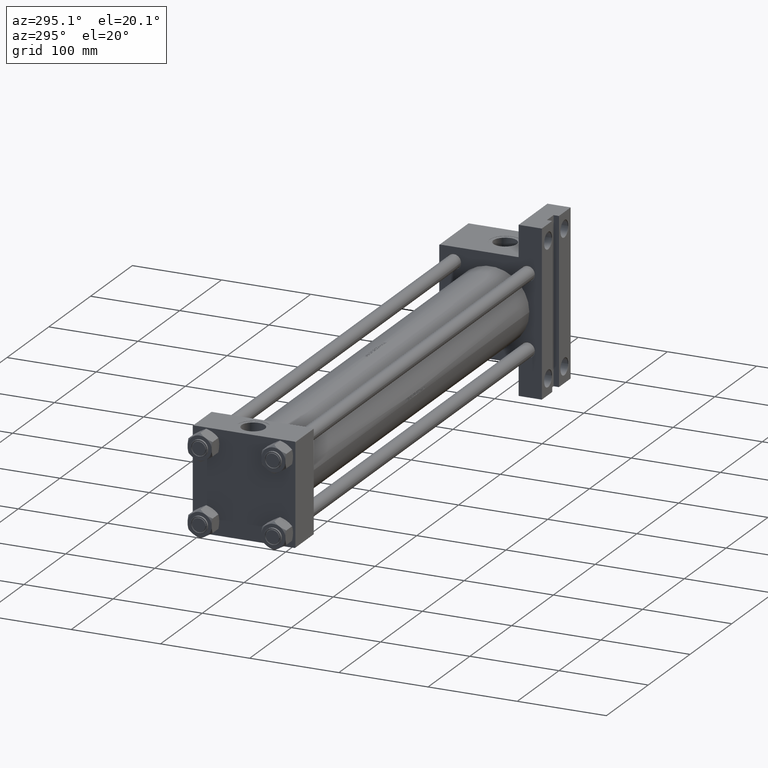
[diagram: clean part render]
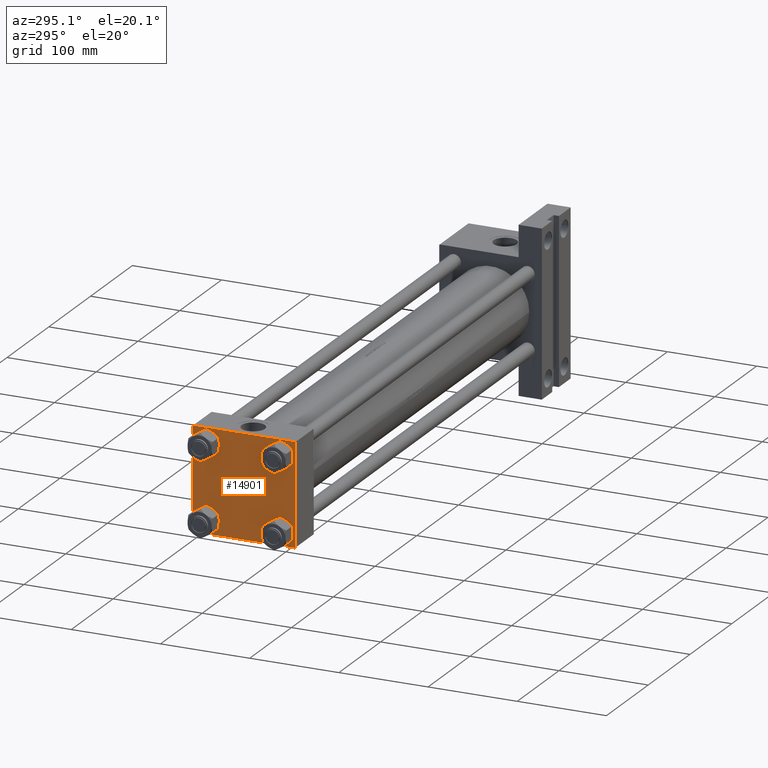
[diagram: same view with one face highlighted and labeled with its STEP entity id]
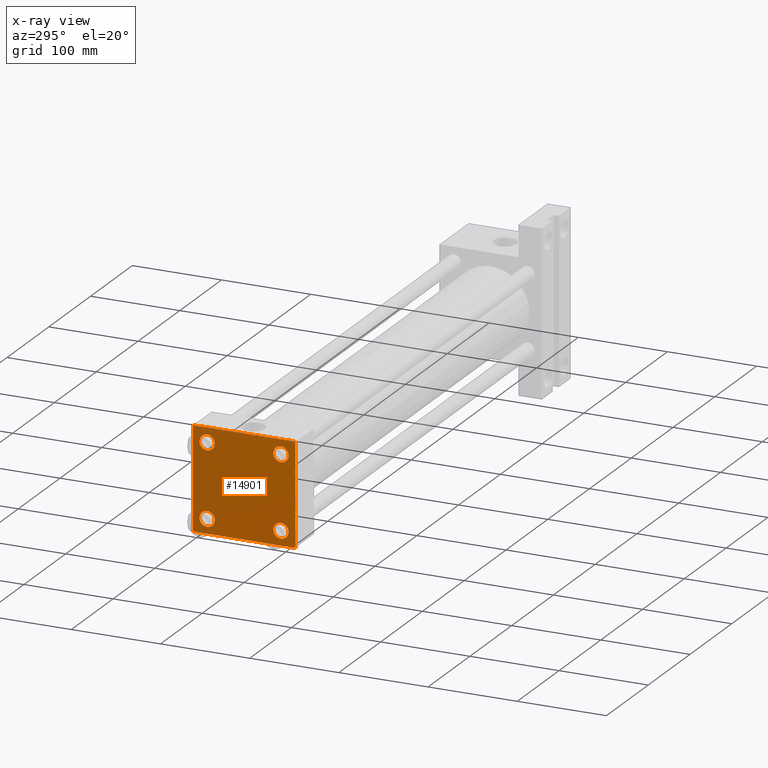
[diagram: x-ray of the same camera — body ghosted, the highlighted face saturated]
A machine part, auxiliary view. The second image highlights one B-rep face of the part: STEP entity #14901.
The next image is the same camera in x-ray: the body ghosted, the highlighted face saturated — about 0% of this face is hidden behind the body in this view.
In plain terms, the highlighted planar face has unit normal (-1, 0, -0).
Its self-contained STEP definition (entity closure, byte-faithful):
#192 = CARTESIAN_POINT ( 'NONE',  ( 0.000000000000000000, 57.25000000000081712, -57.24999999999922551 ) ) ;
#1001 = CARTESIAN_POINT ( 'NONE',  ( 0.000000000000000000, 57.49999999999999289, 57.50000000000000711 ) ) ;
#1729 = FACE_BOUND ( 'NONE', #36163, .T. ) ;
#1957 = VERTEX_POINT ( 'NONE', #33063 ) ;
#2216 = CARTESIAN_POINT ( 'NONE',  ( 0.000000000000000000, -41.34999999999998721, -41.35000000000000853 ) ) ;
#2226 = AXIS2_PLACEMENT_3D ( 'NONE', #5019, #23993, #19858 ) ;
#2231 = ORIENTED_EDGE ( 'NONE', *, *, #28511, .T. ) ;
#2429 = VERTEX_POINT ( 'NONE', #22134 ) ;
#2683 = VECTOR ( 'NONE', #16448, 1000.000000000000114 ) ;
#2699 = DIRECTION ( 'NONE',  ( 1.000000000000000000, -0.000000000000000000, 0.000000000000000000 ) ) ;
#3074 = VERTEX_POINT ( 'NONE', #14497 ) ;
#3174 = DIRECTION ( 'NONE',  ( 1.000000000000000000, -0.000000000000000000, 0.000000000000000000 ) ) ;
#4229 = EDGE_CURVE ( 'NONE', #39049, #17564, #8887, .T. ) ;
#4516 = DIRECTION ( 'NONE',  ( 1.000000000000000000, -0.000000000000000000, 0.000000000000000000 ) ) ;
#4549 = AXIS2_PLACEMENT_3D ( 'NONE', #46978, #6368, #43563 ) ;
#5019 = CARTESIAN_POINT ( 'NONE',  ( 0.000000000000000000, 41.34999999999999432, -41.35000000000000142 ) ) ;
#5398 = EDGE_CURVE ( 'NONE', #34273, #1957, #5732, .T. ) ;
#5571 = DIRECTION ( 'NONE',  ( 0.000000000000000000, 0.000000000000000000, 1.000000000000000000 ) ) ;
#5623 = PLANE ( 'NONE',  #42946 ) ;
#5732 = LINE ( 'NONE', #23764, #2683 ) ;
#5988 = CARTESIAN_POINT ( 'NONE',  ( 0.000000000000000000, -57.00000000000000711, -57.50000000000000711 ) ) ;
#6368 = DIRECTION ( 'NONE',  ( 1.000000000000000000, -0.000000000000000000, 0.000000000000000000 ) ) ;
#7012 = CIRCLE ( 'NONE', #17112, 8.499999999999992895 ) ;
#8475 = VECTOR ( 'NONE', #47614, 1000.000000000000000 ) ;
#8887 = CIRCLE ( 'NONE', #41506, 8.499999999999992895 ) ;
#9156 = CARTESIAN_POINT ( 'NONE',  ( 0.000000000000000000, -57.50000000000000711, 57.00000000000000711 ) ) ;
#9380 = VERTEX_POINT ( 'NONE', #44993 ) ;
#9459 = ORIENTED_EDGE ( 'NONE', *, *, #18329, .T. ) ;
#9899 = CARTESIAN_POINT ( 'NONE',  ( 0.000000000000000000, -41.34999999999998721, -32.85000000000001563 ) ) ;
#10696 = CARTESIAN_POINT ( 'NONE',  ( -0.000000000000000000, -57.25000000000081712, 57.24999999999922551 ) ) ;
#11410 = LINE ( 'NONE', #192, #18811 ) ;
#11496 = VERTEX_POINT ( 'NONE', #9899 ) ;
#11553 = CARTESIAN_POINT ( 'NONE',  ( 0.000000000000000000, 57.49999999999999289, -57.49999999999999289 ) ) ;
#11829 = DIRECTION ( 'NONE',  ( 0.000000000000000000, 0.000000000000000000, 1.000000000000000000 ) ) ;
#12169 = EDGE_LOOP ( 'NONE', ( #24259, #12985 ) ) ;
#12275 = VECTOR ( 'NONE', #28748, 1000.000000000000114 ) ;
#12935 = FACE_BOUND ( 'NONE', #25597, .T. ) ;
#12985 = ORIENTED_EDGE ( 'NONE', *, *, #27617, .T. ) ;
#13356 = CARTESIAN_POINT ( 'NONE',  ( 0.000000000000000000, -41.34999999999998721, -49.85000000000000853 ) ) ;
#13927 = VERTEX_POINT ( 'NONE', #18467 ) ;
#14140 = DIRECTION ( 'NONE',  ( 0.000000000000000000, 0.000000000000000000, 1.000000000000000000 ) ) ;
#14497 = CARTESIAN_POINT ( 'NONE',  ( 0.000000000000000000, -41.34999999999998721, 49.85000000000000853 ) ) ;
#14901 = ADVANCED_FACE ( 'NONE', ( #1729, #20460, #32763, #12935, #47612 ), #5623, .T. ) ;
#14914 = AXIS2_PLACEMENT_3D ( 'NONE', #16521, #46186, #5571 ) ;
#14937 = VERTEX_POINT ( 'NONE', #36657 ) ;
#15863 = DIRECTION ( 'NONE',  ( 0.000000000000000000, -1.000000000000000000, -1.206764157201257045E-16 ) ) ;
#15913 = AXIS2_PLACEMENT_3D ( 'NONE', #16475, #42490, #16954 ) ;
#16448 = DIRECTION ( 'NONE',  ( 0.000000000000000000, 0.7071067811865573427, -0.7071067811865376918 ) ) ;
#16468 = CIRCLE ( 'NONE', #39749, 8.499999999999992895 ) ;
#16475 = CARTESIAN_POINT ( 'NONE',  ( 0.000000000000000000, 41.34999999999999432, 41.35000000000000142 ) ) ;
#16521 = CARTESIAN_POINT ( 'NONE',  ( 0.000000000000000000, -41.34999999999998721, 41.35000000000000853 ) ) ;
#16954 = DIRECTION ( 'NONE',  ( 0.000000000000000000, 0.000000000000000000, 1.000000000000000000 ) ) ;
#17112 = AXIS2_PLACEMENT_3D ( 'NONE', #2216, #3174, #14140 ) ;
#17564 = VERTEX_POINT ( 'NONE', #20958 ) ;
#18329 = EDGE_CURVE ( 'NONE', #29452, #2429, #27553, .T. ) ;
#18386 = VERTEX_POINT ( 'NONE', #28614 ) ;
#18467 = CARTESIAN_POINT ( 'NONE',  ( 0.000000000000000000, 57.49999999999999289, -57.00000000000000711 ) ) ;
#18557 = DIRECTION ( 'NONE',  ( 0.000000000000000000, 0.000000000000000000, 1.000000000000000000 ) ) ;
#18811 = VECTOR ( 'NONE', #26243, 1000.000000000000114 ) ;
#18815 = CIRCLE ( 'NONE', #25054, 8.499999999999992895 ) ;
#19837 = CARTESIAN_POINT ( 'NONE',  ( 0.000000000000000000, 41.34999999999999432, 41.35000000000000142 ) ) ;
#19858 = DIRECTION ( 'NONE',  ( 0.000000000000000000, 0.000000000000000000, 1.000000000000000000 ) ) ;
#20460 = FACE_BOUND ( 'NONE', #12169, .T. ) ;
#20740 = LINE ( 'NONE', #46984, #12275 ) ;
#20958 = CARTESIAN_POINT ( 'NONE',  ( 0.000000000000000000, 41.34999999999999432, -32.85000000000000853 ) ) ;
#21405 = EDGE_LOOP ( 'NONE', ( #32915, #25650, #27874, #2231, #21776, #32732, #43624, #26019 ) ) ;
#21596 = VECTOR ( 'NONE', #21876, 1000.000000000000000 ) ;
#21776 = ORIENTED_EDGE ( 'NONE', *, *, #26962, .F. ) ;
#21835 = DIRECTION ( 'NONE',  ( -0.000000000000000000, 0.000000000000000000, 1.000000000000000000 ) ) ;
#21876 = DIRECTION ( 'NONE',  ( 0.000000000000000000, 0.000000000000000000, -1.000000000000000000 ) ) ;
#22134 = CARTESIAN_POINT ( 'NONE',  ( 0.000000000000000000, 41.34999999999999432, 32.85000000000000853 ) ) ;
#23764 = CARTESIAN_POINT ( 'NONE',  ( 0.000000000000000000, 57.24999999999922551, 57.25000000000081712 ) ) ;
#23993 = DIRECTION ( 'NONE',  ( 1.000000000000000000, -0.000000000000000000, 0.000000000000000000 ) ) ;
#24259 = ORIENTED_EDGE ( 'NONE', *, *, #36621, .T. ) ;
#25054 = AXIS2_PLACEMENT_3D ( 'NONE', #19837, #4516, #11829 ) ;
#25597 = EDGE_LOOP ( 'NONE', ( #9459, #44111 ) ) ;
#25650 = ORIENTED_EDGE ( 'NONE', *, *, #47876, .T. ) ;
#26019 = ORIENTED_EDGE ( 'NONE', *, *, #5398, .T. ) ;
#26243 = DIRECTION ( 'NONE',  ( -0.000000000000000000, -0.7071067811865376918, -0.7071067811865573427 ) ) ;
#26962 = EDGE_CURVE ( 'NONE', #44725, #9380, #44476, .T. ) ;
#27056 = LINE ( 'NONE', #1001, #42042 ) ;
#27341 = CIRCLE ( 'NONE', #14914, 8.499999999999992895 ) ;
#27553 = CIRCLE ( 'NONE', #15913, 8.499999999999992895 ) ;
#27617 = EDGE_CURVE ( 'NONE', #35965, #11496, #30859, .T. ) ;
#27868 = ORIENTED_EDGE ( 'NONE', *, *, #46232, .T. ) ;
#27874 = ORIENTED_EDGE ( 'NONE', *, *, #33750, .T. ) ;
#28511 = EDGE_CURVE ( 'NONE', #34860, #9380, #20740, .T. ) ;
#28614 = CARTESIAN_POINT ( 'NONE',  ( 0.000000000000000000, 57.00000000000002132, -57.49999999999999289 ) ) ;
#28748 = DIRECTION ( 'NONE',  ( 0.000000000000000000, -0.7071067811865474617, 0.7071067811865474617 ) ) ;
#29452 = VERTEX_POINT ( 'NONE', #38799 ) ;
#29607 = LINE ( 'NONE', #32765, #8475 ) ;
#30605 = ORIENTED_EDGE ( 'NONE', *, *, #46400, .T. ) ;
#30859 = CIRCLE ( 'NONE', #4549, 8.499999999999992895 ) ;
#31107 = VECTOR ( 'NONE', #33522, 1000.000000000000114 ) ;
#31568 = CARTESIAN_POINT ( 'NONE',  ( 0.000000000000000000, 57.00000000000000711, 57.50000000000000711 ) ) ;
#31876 = DIRECTION ( 'NONE',  ( 0.000000000000000000, 0.000000000000000000, 1.000000000000000000 ) ) ;
#32243 = EDGE_CURVE ( 'NONE', #1957, #13927, #29607, .T. ) ;
#32732 = ORIENTED_EDGE ( 'NONE', *, *, #43041, .T. ) ;
#32763 = FACE_BOUND ( 'NONE', #47110, .T. ) ;
#32765 = CARTESIAN_POINT ( 'NONE',  ( 0.000000000000000000, 57.49999999999999289, 57.50000000000000711 ) ) ;
#32906 = CARTESIAN_POINT ( 'NONE',  ( 0.000000000000000000, 41.34999999999999432, -41.35000000000000142 ) ) ;
#32915 = ORIENTED_EDGE ( 'NONE', *, *, #32243, .T. ) ;
#33047 = LINE ( 'NONE', #10696, #31107 ) ;
#33063 = CARTESIAN_POINT ( 'NONE',  ( 0.000000000000000000, 57.49999999999999289, 57.00000000000003553 ) ) ;
#33522 = DIRECTION ( 'NONE',  ( -0.000000000000000000, 0.7071067811865376918, 0.7071067811865573427 ) ) ;
#33750 = EDGE_CURVE ( 'NONE', #18386, #34860, #41690, .T. ) ;
#34273 = VERTEX_POINT ( 'NONE', #31568 ) ;
#34387 = DIRECTION ( 'NONE',  ( 0.000000000000000000, -1.000000000000000000, -1.206764157201257045E-16 ) ) ;
#34687 = CARTESIAN_POINT ( 'NONE',  ( 0.000000000000000000, 41.34999999999999432, -49.85000000000000142 ) ) ;
#34860 = VERTEX_POINT ( 'NONE', #5988 ) ;
#35965 = VERTEX_POINT ( 'NONE', #13356 ) ;
#36163 = EDGE_LOOP ( 'NONE', ( #27868, #30605 ) ) ;
#36621 = EDGE_CURVE ( 'NONE', #11496, #35965, #7012, .T. ) ;
#36657 = CARTESIAN_POINT ( 'NONE',  ( 0.000000000000000000, -41.34999999999998721, 32.85000000000001563 ) ) ;
#37005 = VERTEX_POINT ( 'NONE', #46426 ) ;
#38015 = VECTOR ( 'NONE', #34387, 1000.000000000000000 ) ;
#38474 = EDGE_CURVE ( 'NONE', #2429, #29452, #18815, .T. ) ;
#38799 = CARTESIAN_POINT ( 'NONE',  ( 0.000000000000000000, 41.34999999999999432, 49.85000000000000142 ) ) ;
#39049 = VERTEX_POINT ( 'NONE', #34687 ) ;
#39075 = EDGE_CURVE ( 'NONE', #17564, #39049, #48064, .T. ) ;
#39657 = CARTESIAN_POINT ( 'NONE',  ( 0.000000000000000000, -41.34999999999998721, 41.35000000000000853 ) ) ;
#39749 = AXIS2_PLACEMENT_3D ( 'NONE', #39657, #2699, #31876 ) ;
#40349 = CARTESIAN_POINT ( 'NONE',  ( 0.000000000000000000, -57.50000000000000711, 57.49999999999999289 ) ) ;
#40470 = ORIENTED_EDGE ( 'NONE', *, *, #4229, .T. ) ;
#41384 = ORIENTED_EDGE ( 'NONE', *, *, #39075, .T. ) ;
#41506 = AXIS2_PLACEMENT_3D ( 'NONE', #32906, #47271, #18557 ) ;
#41690 = LINE ( 'NONE', #11553, #38015 ) ;
#42042 = VECTOR ( 'NONE', #15863, 1000.000000000000000 ) ;
#42490 = DIRECTION ( 'NONE',  ( 1.000000000000000000, -0.000000000000000000, 0.000000000000000000 ) ) ;
#42588 = CARTESIAN_POINT ( 'NONE',  ( 0.000000000000000000, 0.000000000000000000, 0.000000000000000000 ) ) ;
#42946 = AXIS2_PLACEMENT_3D ( 'NONE', #42588, #43962, #21835 ) ;
#43041 = EDGE_CURVE ( 'NONE', #44725, #37005, #33047, .T. ) ;
#43563 = DIRECTION ( 'NONE',  ( 0.000000000000000000, 0.000000000000000000, 1.000000000000000000 ) ) ;
#43624 = ORIENTED_EDGE ( 'NONE', *, *, #45389, .F. ) ;
#43962 = DIRECTION ( 'NONE',  ( -1.000000000000000000, 0.000000000000000000, -0.000000000000000000 ) ) ;
#44111 = ORIENTED_EDGE ( 'NONE', *, *, #38474, .T. ) ;
#44476 = LINE ( 'NONE', #40349, #21596 ) ;
#44725 = VERTEX_POINT ( 'NONE', #9156 ) ;
#44993 = CARTESIAN_POINT ( 'NONE',  ( 0.000000000000000000, -57.50000000000000711, -57.00000000000000711 ) ) ;
#45389 = EDGE_CURVE ( 'NONE', #34273, #37005, #27056, .T. ) ;
#46186 = DIRECTION ( 'NONE',  ( 1.000000000000000000, -0.000000000000000000, 0.000000000000000000 ) ) ;
#46232 = EDGE_CURVE ( 'NONE', #3074, #14937, #16468, .T. ) ;
#46400 = EDGE_CURVE ( 'NONE', #14937, #3074, #27341, .T. ) ;
#46426 = CARTESIAN_POINT ( 'NONE',  ( 0.000000000000000000, -57.00000000000003553, 57.49999999999999289 ) ) ;
#46978 = CARTESIAN_POINT ( 'NONE',  ( 0.000000000000000000, -41.34999999999998721, -41.35000000000000853 ) ) ;
#46984 = CARTESIAN_POINT ( 'NONE',  ( 0.000000000000000000, -57.25000000000000711, -57.25000000000000711 ) ) ;
#47110 = EDGE_LOOP ( 'NONE', ( #41384, #40470 ) ) ;
#47271 = DIRECTION ( 'NONE',  ( 1.000000000000000000, -0.000000000000000000, 0.000000000000000000 ) ) ;
#47612 = FACE_OUTER_BOUND ( 'NONE', #21405, .T. ) ;
#47614 = DIRECTION ( 'NONE',  ( 0.000000000000000000, 0.000000000000000000, -1.000000000000000000 ) ) ;
#47876 = EDGE_CURVE ( 'NONE', #13927, #18386, #11410, .T. ) ;
#48064 = CIRCLE ( 'NONE', #2226, 8.499999999999992895 ) ;